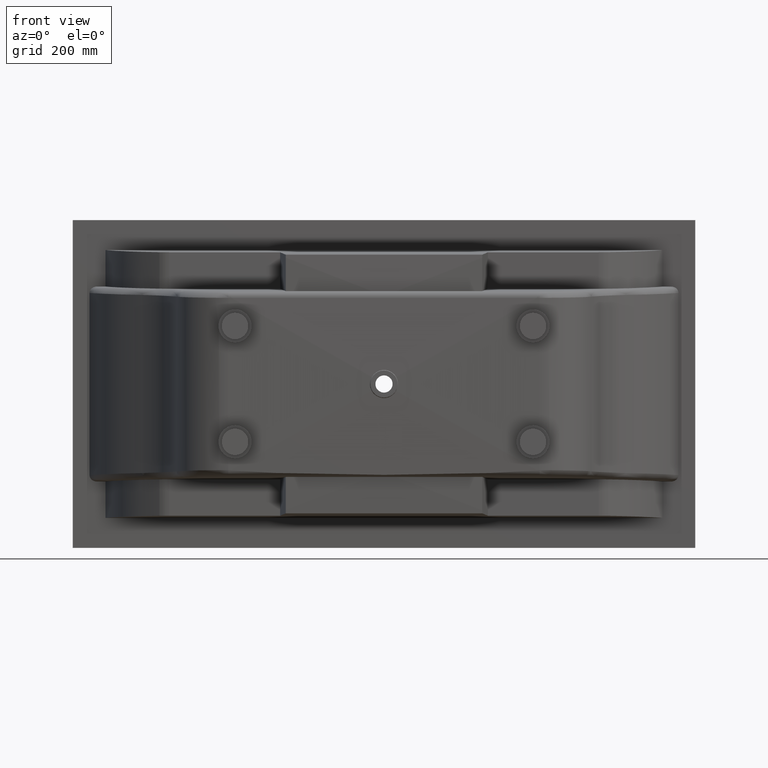
[diagram: clean part render]
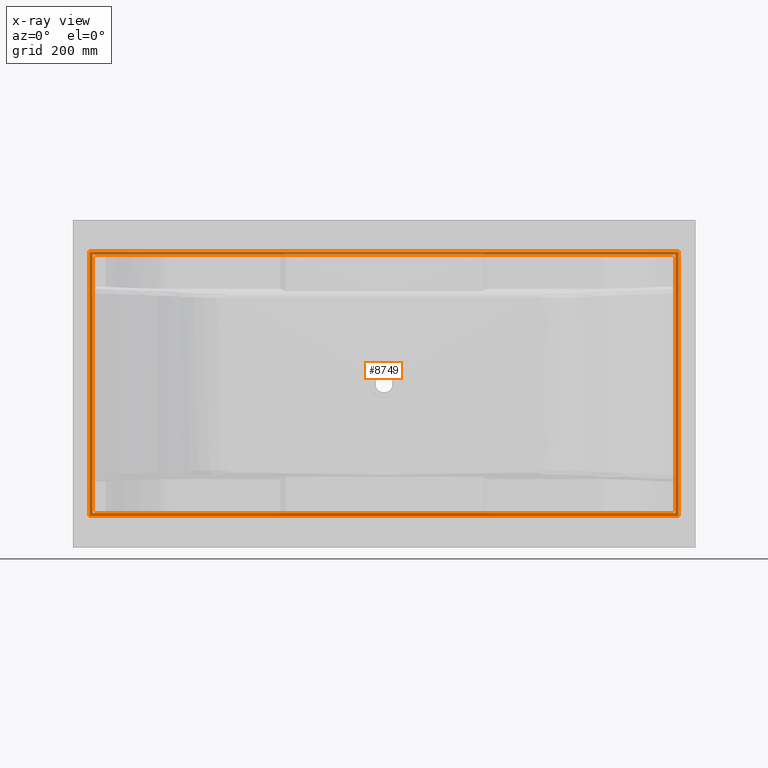
[diagram: x-ray — body ghosted, one internal face saturated and labeled with its STEP entity id]
A machine part, front view, then the same camera in x-ray: the body is ghosted and one INTERNAL B-rep face — a face not visible from any outside direction — is saturated and labeled: STEP entity #8749.
In plain terms, the highlighted planar face has unit normal (-0, 1, 0).
Its self-contained STEP definition (entity closure, byte-faithful):
#168 = CARTESIAN_POINT ( 'NONE',  ( 1820.000000000002500, 5.000000000000004400, -104.9999999999999900 ) ) ;
#226 = CARTESIAN_POINT ( 'NONE',  ( 60.00000000000000000, 5.000000000000004400, -884.9999999999992000 ) ) ;
#298 = LINE ( 'NONE', #5537, #7645 ) ;
#387 = CARTESIAN_POINT ( 'NONE',  ( 49.99999999999998600, 5.000000000000004400, -95.00000000000008500 ) ) ;
#987 = LINE ( 'NONE', #4072, #8280 ) ;
#1120 = ORIENTED_EDGE ( 'NONE', *, *, #3464, .T. ) ;
#1142 = CARTESIAN_POINT ( 'NONE',  ( 49.99999999999998600, 5.000000000000004400, -894.9999999999994300 ) ) ;
#1209 = ORIENTED_EDGE ( 'NONE', *, *, #1980, .F. ) ;
#1271 = VERTEX_POINT ( 'NONE', #226 ) ;
#1311 = CARTESIAN_POINT ( 'NONE',  ( 1820.000000000002500, 5.000000000000004400, -884.9999999999992000 ) ) ;
#1384 = AXIS2_PLACEMENT_3D ( 'NONE', #9037, #9066, #4902 ) ;
#1405 = VERTEX_POINT ( 'NONE', #168 ) ;
#1430 = DIRECTION ( 'NONE',  ( -1.000000000000000000, -0.0000000000000000000, -0.0000000000000000000 ) ) ;
#1439 = CARTESIAN_POINT ( 'NONE',  ( 1830.000000000002700, 5.000000000000004400, -95.00000000000008500 ) ) ;
#1527 = LINE ( 'NONE', #7075, #5090 ) ;
#1656 = EDGE_CURVE ( 'NONE', #8471, #5137, #6055, .T. ) ;
#1908 = FACE_BOUND ( 'NONE', #5705, .T. ) ;
#1953 = DIRECTION ( 'NONE',  ( -0.0000000000000000000, -0.0000000000000000000, 1.000000000000000000 ) ) ;
#1980 = EDGE_CURVE ( 'NONE', #5137, #2722, #7599, .T. ) ;
#2201 = EDGE_CURVE ( 'NONE', #6738, #1271, #1527, .T. ) ;
#2604 = CARTESIAN_POINT ( 'NONE',  ( 1830.000000000002700, 5.000000000000004400, -894.9999999999994300 ) ) ;
#2722 = VERTEX_POINT ( 'NONE', #7769 ) ;
#3306 = DIRECTION ( 'NONE',  ( 1.000000000000000000, 0.0000000000000000000, 0.0000000000000000000 ) ) ;
#3464 = EDGE_CURVE ( 'NONE', #6204, #1405, #8545, .T. ) ;
#3986 = DIRECTION ( 'NONE',  ( 1.387778780781446900E-016, 0.0000000000000000000, -1.000000000000000000 ) ) ;
#4072 = CARTESIAN_POINT ( 'NONE',  ( 49.99999999999998600, 5.000000000000004400, -95.00000000000008500 ) ) ;
#4206 = DIRECTION ( 'NONE',  ( 1.000000000000000000, 0.0000000000000000000, 0.0000000000000000000 ) ) ;
#4406 = DIRECTION ( 'NONE',  ( 0.0000000000000000000, 0.0000000000000000000, -1.000000000000000000 ) ) ;
#4419 = CARTESIAN_POINT ( 'NONE',  ( 1830.000000000002700, 5.000000000000004400, -95.00000000000008500 ) ) ;
#4430 = ORIENTED_EDGE ( 'NONE', *, *, #2201, .T. ) ;
#4556 = EDGE_CURVE ( 'NONE', #1405, #6738, #4742, .T. ) ;
#4742 = LINE ( 'NONE', #7846, #8207 ) ;
#4902 = DIRECTION ( 'NONE',  ( 0.0000000000000000000, -0.0000000000000000000, 1.000000000000000000 ) ) ;
#5090 = VECTOR ( 'NONE', #1430, 1000.000000000000000 ) ;
#5137 = VERTEX_POINT ( 'NONE', #2604 ) ;
#5140 = VECTOR ( 'NONE', #1953, 1000.000000000000000 ) ;
#5185 = CARTESIAN_POINT ( 'NONE',  ( 60.00000000000000000, 5.000000000000004400, -104.9999999999999900 ) ) ;
#5292 = ORIENTED_EDGE ( 'NONE', *, *, #4556, .T. ) ;
#5410 = DIRECTION ( 'NONE',  ( -1.000000000000000000, -0.0000000000000000000, -0.0000000000000000000 ) ) ;
#5443 = FACE_OUTER_BOUND ( 'NONE', #8982, .T. ) ;
#5537 = CARTESIAN_POINT ( 'NONE',  ( 49.99999999999998600, 5.000000000000004400, -95.00000000000008500 ) ) ;
#5687 = ORIENTED_EDGE ( 'NONE', *, *, #1656, .F. ) ;
#5705 = EDGE_LOOP ( 'NONE', ( #1120, #5292, #4430, #7528 ) ) ;
#5720 = VECTOR ( 'NONE', #5410, 1000.000000000000000 ) ;
#5832 = VERTEX_POINT ( 'NONE', #387 ) ;
#6055 = LINE ( 'NONE', #4419, #7923 ) ;
#6071 = CARTESIAN_POINT ( 'NONE',  ( 60.00000000000000000, 5.000000000000004400, -104.9999999999999900 ) ) ;
#6204 = VERTEX_POINT ( 'NONE', #5185 ) ;
#6689 = VECTOR ( 'NONE', #3306, 1000.000000000000000 ) ;
#6738 = VERTEX_POINT ( 'NONE', #1311 ) ;
#7075 = CARTESIAN_POINT ( 'NONE',  ( 60.00000000000000000, 5.000000000000004400, -884.9999999999992000 ) ) ;
#7103 = EDGE_CURVE ( 'NONE', #1271, #6204, #8848, .T. ) ;
#7528 = ORIENTED_EDGE ( 'NONE', *, *, #7103, .T. ) ;
#7599 = LINE ( 'NONE', #1142, #5720 ) ;
#7645 = VECTOR ( 'NONE', #4206, 1000.000000000000000 ) ;
#7646 = EDGE_CURVE ( 'NONE', #5832, #8471, #298, .T. ) ;
#7769 = CARTESIAN_POINT ( 'NONE',  ( 49.99999999999998600, 5.000000000000004400, -894.9999999999994300 ) ) ;
#7846 = CARTESIAN_POINT ( 'NONE',  ( 1820.000000000002500, 5.000000000000004400, -104.9999999999999900 ) ) ;
#7859 = ORIENTED_EDGE ( 'NONE', *, *, #8191, .F. ) ;
#7923 = VECTOR ( 'NONE', #3986, 1000.000000000000000 ) ;
#7935 = ORIENTED_EDGE ( 'NONE', *, *, #7646, .F. ) ;
#8191 = EDGE_CURVE ( 'NONE', #2722, #5832, #987, .T. ) ;
#8207 = VECTOR ( 'NONE', #4406, 1000.000000000000000 ) ;
#8280 = VECTOR ( 'NONE', #8927, 1000.000000000000000 ) ;
#8355 = PLANE ( 'NONE',  #1384 ) ;
#8471 = VERTEX_POINT ( 'NONE', #1439 ) ;
#8545 = LINE ( 'NONE', #6071, #6689 ) ;
#8749 = ADVANCED_FACE ( 'NONE', ( #1908, #5443 ), #8355, .F. ) ;
#8848 = LINE ( 'NONE', #9014, #5140 ) ;
#8927 = DIRECTION ( 'NONE',  ( -0.0000000000000000000, -0.0000000000000000000, 1.000000000000000000 ) ) ;
#8982 = EDGE_LOOP ( 'NONE', ( #7935, #7859, #1209, #5687 ) ) ;
#9014 = CARTESIAN_POINT ( 'NONE',  ( 60.00000000000000000, 5.000000000000004400, -104.9999999999999900 ) ) ;
#9037 = CARTESIAN_POINT ( 'NONE',  ( 940.0000000000026100, 5.000000000000004400, -494.9999999999993200 ) ) ;
#9066 = DIRECTION ( 'NONE',  ( -0.0000000000000000000, 1.000000000000000000, 0.0000000000000000000 ) ) ;